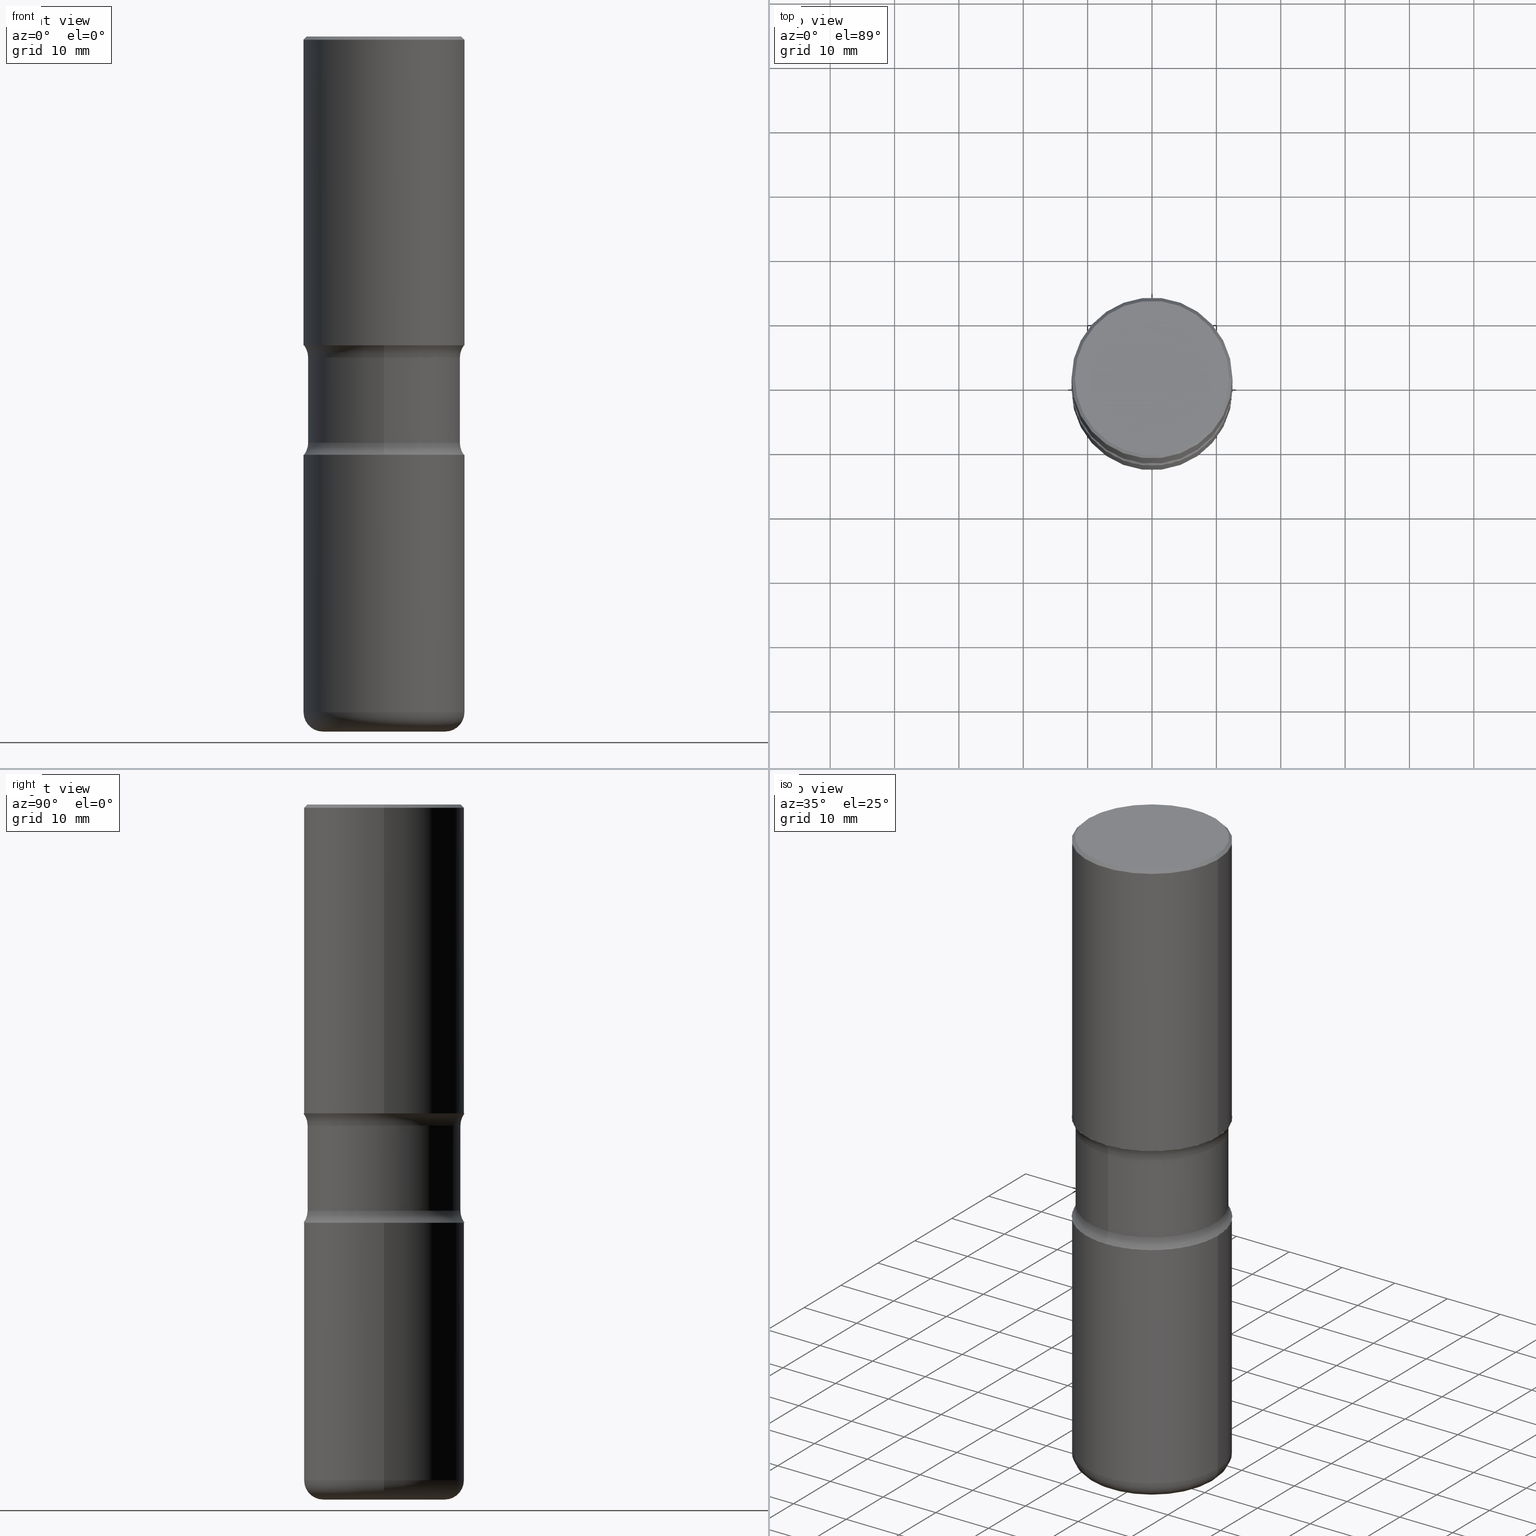
[diagram: canonical four-view strip — front | top / right | iso, engineering-drawing reading convention]
A machine part, canonical four-view strip (front | top / right | iso — engineering-drawing reading convention). The complete STEP part file that produces these views, byte-faithful:
ISO-10303-21;
HEADER;
FILE_DESCRIPTION (( 'STEP AP203' ),
    '1' );
FILE_NAME ('45015.STEP',
    '2024-03-02T04:41:59',
    ( '' ),
    ( '' ),
    'SwSTEP 2.0',
    'SolidWorks 2023',
    '' );
FILE_SCHEMA (( 'CONFIG_CONTROL_DESIGN' ));
ENDSEC;

DATA;
#1 = DIRECTION ( 'NONE',  ( -6.982962677686268288E-15, -1.000000000000000000, 0.000000000000000000 ) ) ;
#2 = DIRECTION ( 'NONE',  ( 6.982962677686265922E-15, 1.000000000000000000, -3.506115072082476004E-15 ) ) ;
#3 = DIRECTION ( 'NONE',  ( 1.000000000000000000, -6.982962677686266711E-15, 4.876176775795935793E-29 ) ) ;
#4 = VECTOR ( 'NONE', #324, 39.37007874015748143 ) ;
#5 = CIRCLE ( 'NONE', #361, 0.4921500000000003650 ) ;
#6 = DIRECTION ( 'NONE',  ( -2.445468806185136597E-29, 3.491481338843145583E-15, 1.000000000000000000 ) ) ;
#7 = CC_DESIGN_PERSON_AND_ORGANIZATION_ASSIGNMENT ( #190, #358, ( #322 ) ) ;
#8 = EDGE_CURVE ( 'NONE', #383, #194, #474, .T. ) ;
#9 = CARTESIAN_POINT ( 'NONE',  ( 0.4921500000000003094, -1.237171497605679270E-14, -2.559099999999999930 ) ) ;
#10 = CARTESIAN_POINT ( 'NONE',  ( 3.264535051818434527E-15, 0.4674999999999853162, -4.252000000000002444 ) ) ;
#11 = AXIS2_PLACEMENT_3D ( 'NONE', #227, #399, #355 ) ;
#12 = CARTESIAN_POINT ( 'NONE',  ( -0.4921500000000000874, 3.366835455046433267E-15, -0.02000000000000010103 ) ) ;
#13 = CIRCLE ( 'NONE', #133, 0.4921500000000003094 ) ;
#14 = DIRECTION ( 'NONE',  ( 6.982962677686265922E-15, 1.000000000000000000, -3.506115072082476004E-15 ) ) ;
#15 = DIRECTION ( 'NONE',  ( 7.105427357601001859E-15, 1.000000000000000000, -3.491481338843145583E-15 ) ) ;
#16 = CARTESIAN_POINT ( 'NONE',  ( 0.4921500000000003650, -3.436665081823298538E-15, 2.399810400207971564E-29 ) ) ;
#17 = APPROVAL_ROLE ( '' ) ;
#18 = PLANE ( 'NONE',  #489 ) ;
#19 = EDGE_LOOP ( 'NONE', ( #408, #551, #131, #412 ) ) ;
#20 = AXIS2_PLACEMENT_3D ( 'NONE', #22, #287, #156 ) ;
#21 = VECTOR ( 'NONE', #393, 39.37007874015748143 ) ;
#22 = CARTESIAN_POINT ( 'NONE',  ( 4.890937612370298557E-31, -6.982962677686327354E-17, -0.02000000000000010103 ) ) ;
#23 = EDGE_CURVE ( 'NONE', #244, #383, #253, .T. ) ;
#24 = ORIENTED_EDGE ( 'NONE', *, *, #340, .F. ) ;
#25 = DIRECTION ( 'NONE',  ( -2.445468806185136597E-29, 3.491481338843145583E-15, 1.000000000000000000 ) ) ;
#26 = ORIENTED_EDGE ( 'NONE', *, *, #507, .T. ) ;
#27 = DIRECTION ( 'NONE',  ( 2.445231236012367255E-29, -3.491821552852205613E-15, -1.000000000000000000 ) ) ;
#28 = ORIENTED_EDGE ( 'NONE', *, *, #299, .T. ) ;
#29 = CIRCLE ( 'NONE', #356, 0.4921500000000003094 ) ;
#30 = VECTOR ( 'NONE', #175, 39.37007874015748143 ) ;
#31 = PLANE ( 'NONE',  #122 ) ;
#32 = ORIENTED_EDGE ( 'NONE', *, *, #342, .F. ) ;
#33 = ADVANCED_FACE ( 'NONE', ( #343 ), #391, .T. ) ;
#34 = DIRECTION ( 'NONE',  ( 1.000000000000000000, -6.982962677686266711E-15, 4.876176775795935793E-29 ) ) ;
#35 = VERTEX_POINT ( 'NONE', #178 ) ;
#36 = COORDINATED_UNIVERSAL_TIME_OFFSET ( 5, 0, .BEHIND. ) ;
#37 = DIRECTION ( 'NONE',  ( 6.860497997771532351E-15, 1.000000000000000000, 0.000000000000000000 ) ) ;
#38 = ORIENTED_EDGE ( 'NONE', *, *, #527, .F. ) ;
#39 = DIRECTION ( 'NONE',  ( 2.445231236012367255E-29, -3.491821552852205219E-15, -1.000000000000000000 ) ) ;
#40 = ORIENTED_EDGE ( 'NONE', *, *, #82, .T. ) ;
#41 = EDGE_CURVE ( 'NONE', #351, #194, #345, .T. ) ;
#42 = DIRECTION ( 'NONE',  ( 2.438088387897960049E-29, -3.491481338843145188E-15, -1.000000000000000000 ) ) ;
#43 = CARTESIAN_POINT ( 'NONE',  ( 4.890937612370298557E-31, -6.982962677686327354E-17, -0.02000000000000010103 ) ) ;
#44 = DIRECTION ( 'NONE',  ( 2.445231236012367255E-29, -3.491821552852205613E-15, -1.000000000000000000 ) ) ;
#45 = EDGE_LOOP ( 'NONE', ( #66, #40 ) ) ;
#46 = CC_DESIGN_PERSON_AND_ORGANIZATION_ASSIGNMENT ( #79, #506, ( #396 ) ) ;
#47 = AXIS2_PLACEMENT_3D ( 'NONE', #257, #86, #1 ) ;
#48 = CONICAL_SURFACE ( 'NONE', #20, 0.4921500000000000874, 0.7853981633974471688 ) ;
#49 = PRODUCT_DEFINITION_FORMATION_WITH_SPECIFIED_SOURCE ( 'ANY', '', #352, .NOT_KNOWN. ) ;
#50 = CYLINDRICAL_SURFACE ( 'NONE', #55, 0.4675000000000001377 ) ;
#51 = FACE_OUTER_BOUND ( 'NONE', #215, .T. ) ;
#52 = ADVANCED_FACE ( 'NONE', ( #89 ), #456, .T. ) ;
#53 = FACE_OUTER_BOUND ( 'NONE', #19, .T. ) ;
#54 = APPLICATION_PROTOCOL_DEFINITION ( 'international standard', 'config_control_design', 1994, #264 ) ;
#55 = AXIS2_PLACEMENT_3D ( 'NONE', #486, #228, #14 ) ;
#56 = FACE_OUTER_BOUND ( 'NONE', #151, .T. ) ;
#57 = CIRCLE ( 'NONE', #221, 0.4921500000000003094 ) ;
#58 = PLANE ( 'NONE',  #377 ) ;
#59 = DIRECTION ( 'NONE',  ( -2.445468806185136597E-29, 3.491481338843145583E-15, 1.000000000000000000 ) ) ;
#60 = DIRECTION ( 'NONE',  ( 1.000000000000000000, 0.000000000000000000, 0.000000000000000000 ) ) ;
#61 = ADVANCED_BREP_SHAPE_REPRESENTATION ( '45015', ( #112, #119, #125, #490 ), #419 ) ;
#62 = DIRECTION ( 'NONE',  ( -6.982962677686265133E-15, -1.000000000000000000, 0.000000000000000000 ) ) ;
#63 = ADVANCED_FACE ( 'NONE', ( #51 ), #85, .F. ) ;
#64 = ADVANCED_FACE ( 'NONE', ( #187 ), #50, .T. ) ;
#65 = CARTESIAN_POINT ( 'NONE',  ( -3.376394089603198309E-15, -0.4921500000000092467, -2.559099999999998598 ) ) ;
#66 = ORIENTED_EDGE ( 'NONE', *, *, #195, .T. ) ;
#67 = TOROIDAL_SURFACE ( 'NONE', #430, 0.3740500000000004377, 0.1180999999999999966 ) ;
#68 = PERSON_AND_ORGANIZATION ( #90, #260 ) ;
#69 = FACE_OUTER_BOUND ( 'NONE', #462, .T. ) ;
#70 = DIRECTION ( 'NONE',  ( 2.445231236012367255E-29, -3.491821552852205613E-15, -1.000000000000000000 ) ) ;
#71 = VERTEX_POINT ( 'NONE', #273 ) ;
#72 = CARTESIAN_POINT ( 'NONE',  ( 4.621605955645307016E-29, -6.597973728909513714E-15, -1.889800000000000368 ) ) ;
#73 = ORIENTED_EDGE ( 'NONE', *, *, #183, .F. ) ;
#74 = CALENDAR_DATE ( 2024, 1, 3 ) ;
#75 = AXIS2_PLACEMENT_3D ( 'NONE', #378, #280, #501 ) ;
#76 = LOCAL_TIME ( 23, 41, 59.00000000000000000, #491 ) ;
#77 = DIRECTION ( 'NONE',  ( -2.445468806185136597E-29, 3.491481338843145583E-15, 1.000000000000000000 ) ) ;
#78 = ORIENTED_EDGE ( 'NONE', *, *, #392, .T. ) ;
#79 = PERSON_AND_ORGANIZATION ( #90, #260 ) ;
#80 = DIRECTION ( 'NONE',  ( -2.445468806185136597E-29, 3.491481338843145583E-15, 1.000000000000000000 ) ) ;
#81 = ORIENTED_EDGE ( 'NONE', *, *, #8, .T. ) ;
#82 = EDGE_CURVE ( 'NONE', #432, #137, #29, .T. ) ;
#83 = CARTESIAN_POINT ( 'NONE',  ( -0.4921500000000002539, 3.496936074043334869E-15, -2.420853904668952910E-29 ) ) ;
#84 = ORIENTED_EDGE ( 'NONE', *, *, #449, .F. ) ;
#85 = TOROIDAL_SURFACE ( 'NONE', #555, 0.5925000000000000266, 0.1250000000000000555 ) ;
#86 = DIRECTION ( 'NONE',  ( -1.000000000000000000, 6.982962677686265922E-15, -4.883557194083112340E-29 ) ) ;
#87 = ORIENTED_EDGE ( 'NONE', *, *, #369, .F. ) ;
#88 = DIRECTION ( 'NONE',  ( 1.000000000000000000, -6.982962677686267499E-15, 0.000000000000000000 ) ) ;
#89 = FACE_OUTER_BOUND ( 'NONE', #307, .T. ) ;
#90 = PERSON ( 'UNSPECIFIED', 'UNSPECIFIED', 'UNSPECIFIED', ('UNSPECIFIED'), ('UNSPECIFIED'), ('UNSPECIFIED') ) ;
#91 = ADVANCED_FACE ( 'NONE', ( #272 ), #67, .T. ) ;
#92 = CARTESIAN_POINT ( 'NONE',  ( -0.3740500000000004377, -1.177564960353302285E-14, -4.133899999999999686 ) ) ;
#93 = DIRECTION ( 'NONE',  ( -2.445468806185136597E-29, 3.491481338843145583E-15, 1.000000000000000000 ) ) ;
#94 = AXIS2_PLACEMENT_3D ( 'NONE', #274, #397, #182 ) ;
#95 = ADVANCED_FACE ( 'NONE', ( #444 ), #443, .F. ) ;
#96 = VECTOR ( 'NONE', #556, 39.37007874015748143 ) ;
#97 = CARTESIAN_POINT ( 'NONE',  ( 0.4921500000000003094, -1.003486651596907730E-14, -1.889800000000000368 ) ) ;
#98 = CARTESIAN_POINT ( 'NONE',  ( 3.264535051818377729E-15, 0.4674999999999931433, -1.964331050576255677 ) ) ;
#99 = CARTESIAN_POINT ( 'NONE',  ( 6.258199221908382824E-29, -8.935049894233495342E-15, -2.559099999999999930 ) ) ;
#100 = CIRCLE ( 'NONE', #431, 0.4921500000000003094 ) ;
#101 = DIRECTION ( 'NONE',  ( 1.000000000000000000, -6.982962677686266711E-15, 4.876006802227158492E-29 ) ) ;
#102 = CIRCLE ( 'NONE', #123, 0.4675000000000000266 ) ;
#103 = FACE_OUTER_BOUND ( 'NONE', #45, .T. ) ;
#104 = CARTESIAN_POINT ( 'NONE',  ( 4.803851608567179445E-29, -6.858222857668393721E-15, -1.964331050576254123 ) ) ;
#105 = CC_DESIGN_DATE_AND_TIME_ASSIGNMENT ( #143, #349, ( #322 ) ) ;
#106 = CARTESIAN_POINT ( 'NONE',  ( 0.4921500000000002539, -3.436665081823297749E-15, 2.399810400207971004E-29 ) ) ;
#107 = VERTEX_POINT ( 'NONE', #526 ) ;
#108 = CARTESIAN_POINT ( 'NONE',  ( 3.436665081823343897E-15, 0.4921499999999937036, -1.889800000000002367 ) ) ;
#109 = CARTESIAN_POINT ( 'NONE',  ( 1.039813336389919950E-28, -1.484577865276105326E-14, -4.251999999999999780 ) ) ;
#110 = ORIENTED_EDGE ( 'NONE', *, *, #195, .F. ) ;
#111 = AXIS2_PLACEMENT_3D ( 'NONE', #142, #482, #138 ) ;
#112 = MANIFOLD_SOLID_BREP ( 'Body-Move/Copy2[1]', #335 ) ;
#113 = DIRECTION ( 'NONE',  ( 2.445231236012367255E-29, -3.491821552852205613E-15, -1.000000000000000000 ) ) ;
#114 = EDGE_LOOP ( 'NONE', ( #121, #548 ) ) ;
#115 = ORIENTED_EDGE ( 'NONE', *, *, #41, .T. ) ;
#116 = APPROVAL_DATE_TIME ( #373, #148 ) ;
#117 = ADVANCED_FACE ( 'NONE', ( #56 ), #201, .F. ) ;
#118 = FACE_OUTER_BOUND ( 'NONE', #472, .T. ) ;
#119 = MANIFOLD_SOLID_BREP ( 'Body-Move/Copy2[2]', #445 ) ;
#120 = CIRCLE ( 'NONE', #268, 0.4921500000000003650 ) ;
#121 = ORIENTED_EDGE ( 'NONE', *, *, #255, .F. ) ;
#122 = AXIS2_PLACEMENT_3D ( 'NONE', #204, #374, #550 ) ;
#123 = AXIS2_PLACEMENT_3D ( 'NONE', #104, #207, #130 ) ;
#124 = FACE_OUTER_BOUND ( 'NONE', #265, .T. ) ;
#125 = MANIFOLD_SOLID_BREP ( 'Body-Move/Copy2[4]', #139 ) ;
#126 = ORIENTED_EDGE ( 'NONE', *, *, #8, .F. ) ;
#127 = CC_DESIGN_PERSON_AND_ORGANIZATION_ASSIGNMENT ( #362, #196, ( #352 ) ) ;
#128 = DIRECTION ( 'NONE',  ( 2.445231236012367255E-29, -3.491821552852205613E-15, -1.000000000000000000 ) ) ;
#129 = EDGE_LOOP ( 'NONE', ( #514, #212, #327, #24 ) ) ;
#130 = DIRECTION ( 'NONE',  ( 6.982962677686265922E-15, 1.000000000000000000, -3.506115072082476793E-15 ) ) ;
#131 = ORIENTED_EDGE ( 'NONE', *, *, #425, .T. ) ;
#132 = CIRCLE ( 'NONE', #179, 0.3740500000000004377 ) ;
#133 = AXIS2_PLACEMENT_3D ( 'NONE', #406, #315, #493 ) ;
#134 = CARTESIAN_POINT ( 'NONE',  ( 1.010932349788873450E-28, -1.443343470664368071E-14, -4.133899999999999686 ) ) ;
#135 = CARTESIAN_POINT ( 'NONE',  ( -0.4921500000000000874, 3.366835455046433267E-15, -0.02000000000000010103 ) ) ;
#136 = APPROVAL_STATUS ( 'not_yet_approved' ) ;
#137 = VERTEX_POINT ( 'NONE', #9 ) ;
#138 = DIRECTION ( 'NONE',  ( 6.982962677686266711E-15, 1.000000000000000000, -3.491821552852205613E-15 ) ) ;
#139 = CLOSED_SHELL ( 'NONE', ( #33, #117, #63, #243, #427, #367, #153, #64 ) ) ;
#140 = DIRECTION ( 'NONE',  ( 2.445231236012367255E-29, -3.491821552852205613E-15, -1.000000000000000000 ) ) ;
#141 = DIRECTION ( 'NONE',  ( 0.000000000000000000, 0.000000000000000000, 1.000000000000000000 ) ) ;
#142 = CARTESIAN_POINT ( 'NONE',  ( 6.075935862631948710E-29, -8.674826121982131059E-15, -2.484568949423746620 ) ) ;
#143 = DATE_AND_TIME ( #532, #250 ) ;
#144 = AXIS2_PLACEMENT_3D ( 'NONE', #508, #292, #338 ) ;
#145 = CC_DESIGN_PERSON_AND_ORGANIZATION_ASSIGNMENT ( #68, #241, ( #49 ) ) ;
#146 = CIRCLE ( 'NONE', #463, 0.4921500000000000874 ) ;
#147 = DIRECTION ( 'NONE',  ( 1.000000000000000000, -6.982962677686267499E-15, 0.000000000000000000 ) ) ;
#148 = APPROVAL ( #209, 'UNSPECIFIED' ) ;
#149 = LOCAL_TIME ( 23, 41, 59.00000000000000000, #331 ) ;
#150 = DIRECTION ( 'NONE',  ( 1.000000000000000000, -6.982962677686265133E-15, 0.000000000000000000 ) ) ;
#151 = EDGE_LOOP ( 'NONE', ( #87, #470, #158, #538 ) ) ;
#152 = COORDINATED_UNIVERSAL_TIME_OFFSET ( 5, 0, .BEHIND. ) ;
#153 = ADVANCED_FACE ( 'NONE', ( #53 ), #309, .F. ) ;
#154 = CARTESIAN_POINT ( 'NONE',  ( 3.297005828269570364E-15, 0.4721500000000000696, -1.644234401644690869E-15 ) ) ;
#155 = VERTEX_POINT ( 'NONE', #314 ) ;
#156 = DIRECTION ( 'NONE',  ( -1.000000000000000000, 6.982962677686265922E-15, 0.000000000000000000 ) ) ;
#157 = CIRCLE ( 'NONE', #418, 0.1249999999999999029 ) ;
#158 = ORIENTED_EDGE ( 'NONE', *, *, #269, .T. ) ;
#159 = AXIS2_PLACEMENT_3D ( 'NONE', #390, #382, #426 ) ;
#160 = SHAPE_DEFINITION_REPRESENTATION ( #210, #61 ) ;
#161 = DIMENSIONAL_EXPONENTS ( 1.000000000000000000, 0.000000000000000000, 0.000000000000000000, 0.000000000000000000, 0.000000000000000000, 0.000000000000000000, 0.000000000000000000 ) ;
#162 = DIRECTION ( 'NONE',  ( -2.445468806185136597E-29, 3.491481338843145583E-15, 1.000000000000000000 ) ) ;
#163 = EDGE_CURVE ( 'NONE', #166, #199, #487, .T. ) ;
#164 = ORIENTED_EDGE ( 'NONE', *, *, #23, .F. ) ;
#165 = DIRECTION ( 'NONE',  ( 6.982962677686265922E-15, 1.000000000000000000, -3.330506545156063891E-15 ) ) ;
#166 = VERTEX_POINT ( 'NONE', #98 ) ;
#167 = EDGE_CURVE ( 'NONE', #351, #244, #222, .T. ) ;
#168 = CARTESIAN_POINT ( 'NONE',  ( 0.3740500000000004377, -1.745775584234960551E-14, -4.251999999999999780 ) ) ;
#169 = EDGE_CURVE ( 'NONE', #35, #170, #410, .T. ) ;
#170 = VERTEX_POINT ( 'NONE', #97 ) ;
#171 = VECTOR ( 'NONE', #267, 39.37007874015748143 ) ;
#172 = AXIS2_PLACEMENT_3D ( 'NONE', #516, #128, #297 ) ;
#173 = CARTESIAN_POINT ( 'NONE',  ( 4.621446949928671989E-29, -6.598201434145778368E-15, -1.889800000000000368 ) ) ;
#174 = VERTEX_POINT ( 'NONE', #448 ) ;
#175 = DIRECTION ( 'NONE',  ( 2.445231236012367255E-29, -3.491821552852205219E-15, -1.000000000000000000 ) ) ;
#176 = DIRECTION ( 'NONE',  ( 1.000000000000000000, -6.982962677686265922E-15, 0.000000000000000000 ) ) ;
#177 = PLANE ( 'NONE',  #522 ) ;
#178 = CARTESIAN_POINT ( 'NONE',  ( -0.4921500000000003650, 1.629205435820154164E-16, -1.889800000000000368 ) ) ;
#179 = AXIS2_PLACEMENT_3D ( 'NONE', #247, #192, #150 ) ;
#180 = ORIENTED_EDGE ( 'NONE', *, *, #167, .F. ) ;
#181 = CARTESIAN_POINT ( 'NONE',  ( 4.890937612370298557E-31, -6.982962677686327354E-17, -0.02000000000000010103 ) ) ;
#182 = DIRECTION ( 'NONE',  ( 1.000000000000000000, -6.982962677686265922E-15, 4.876176775795935793E-29 ) ) ;
#183 = EDGE_CURVE ( 'NONE', #244, #351, #184, .T. ) ;
#184 = CIRCLE ( 'NONE', #385, 0.4721500000000000696 ) ;
#185 = DIRECTION ( 'NONE',  ( 6.982962677686266711E-15, 1.000000000000000000, -3.491821552852205613E-15 ) ) ;
#186 = APPLICATION_PROTOCOL_DEFINITION ( 'international standard', 'config_control_design', 1994, #558 ) ;
#187 = FACE_OUTER_BOUND ( 'NONE', #298, .T. ) ;
#188 = DIRECTION ( 'NONE',  ( -1.000000000000000000, 7.105427357601006592E-15, 0.000000000000000000 ) ) ;
#189 = DIRECTION ( 'NONE',  ( -2.445468806185136597E-29, 3.491481338843145583E-15, 1.000000000000000000 ) ) ;
#190 = PERSON_AND_ORGANIZATION ( #90, #260 ) ;
#191 = AXIS2_PLACEMENT_3D ( 'NONE', #413, #198, #420 ) ;
#192 = DIRECTION ( 'NONE',  ( -2.445468806185136597E-29, 3.491481338843145583E-15, 1.000000000000000000 ) ) ;
#193 = CIRCLE ( 'NONE', #47, 0.1249999999999999029 ) ;
#194 = VERTEX_POINT ( 'NONE', #12 ) ;
#195 = EDGE_CURVE ( 'NONE', #137, #432, #100, .T. ) ;
#196 = PERSON_AND_ORGANIZATION_ROLE ( 'design_owner' ) ;
#197 = DIRECTION ( 'NONE',  ( 6.982962677686266711E-15, 1.000000000000000000, -3.491821552852205613E-15 ) ) ;
#198 = DIRECTION ( 'NONE',  ( -2.445468806185136597E-29, 3.491481338843145583E-15, 1.000000000000000000 ) ) ;
#199 = VERTEX_POINT ( 'NONE', #233 ) ;
#200 = DATE_TIME_ROLE ( 'classification_date' ) ;
#201 = TOROIDAL_SURFACE ( 'NONE', #346, 0.5925000000000001377, 0.1249999999999999306 ) ;
#202 = ORIENTED_EDGE ( 'NONE', *, *, #169, .T. ) ;
#203 = CALENDAR_DATE ( 2024, 1, 3 ) ;
#204 = CARTESIAN_POINT ( 'NONE',  ( 6.258199221908382824E-29, -8.935049894233495342E-15, -2.559099999999999930 ) ) ;
#205 = ORIENTED_EDGE ( 'NONE', *, *, #528, .F. ) ;
#206 = EDGE_CURVE ( 'NONE', #107, #137, #404, .T. ) ;
#207 = DIRECTION ( 'NONE',  ( 2.445231236012367255E-29, -3.491821552852205613E-15, -1.000000000000000000 ) ) ;
#208 = DIRECTION ( 'NONE',  ( 2.445231236012367255E-29, -3.491821552852205613E-15, -1.000000000000000000 ) ) ;
#209 = APPROVAL_STATUS ( 'not_yet_approved' ) ;
#210 = PRODUCT_DEFINITION_SHAPE ( 'NONE', 'NONE',  #322 ) ;
#211 = CARTESIAN_POINT ( 'NONE',  ( 4.621446949928671989E-29, -6.598201434145778368E-15, -1.889800000000000368 ) ) ;
#212 = ORIENTED_EDGE ( 'NONE', *, *, #549, .T. ) ;
#213 = TOROIDAL_SURFACE ( 'NONE', #230, 0.5925000000000000266, 0.1250000000000000555 ) ;
#214 = CARTESIAN_POINT ( 'NONE',  ( -0.4921500000000003094, -8.187306226395251184E-15, -2.559099999999999930 ) ) ;
#215 = EDGE_LOOP ( 'NONE', ( #333, #26, #417, #434 ) ) ;
#216 = LINE ( 'NONE', #83, #21 ) ;
#217 = CARTESIAN_POINT ( 'NONE',  ( 0.4921500000000000874, -3.446223716380123532E-15, -0.02000000000000010103 ) ) ;
#218 = DIRECTION ( 'NONE',  ( -2.445468806185136597E-29, 3.491481338843145583E-15, 1.000000000000000000 ) ) ;
#219 = EDGE_CURVE ( 'NONE', #321, #505, #157, .T. ) ;
#220 = ORIENTED_EDGE ( 'NONE', *, *, #167, .T. ) ;
#221 = AXIS2_PLACEMENT_3D ( 'NONE', #544, #113, #165 ) ;
#222 = CIRCLE ( 'NONE', #11, 0.4721500000000000696 ) ;
#223 = LOCAL_TIME ( 23, 41, 59.00000000000000000, #36 ) ;
#224 = DIRECTION ( 'NONE',  ( -2.445468806185136597E-29, 3.491481338843145583E-15, 1.000000000000000000 ) ) ;
#225 = APPROVAL ( #136, 'UNSPECIFIED' ) ;
#226 = ADVANCED_FACE ( 'NONE', ( #504 ), #48, .T. ) ;
#227 = CARTESIAN_POINT ( 'NONE',  ( -2.087702828670439639E-46, 2.980686340760894400E-32, 8.537024980200822558E-18 ) ) ;
#228 = DIRECTION ( 'NONE',  ( 2.445231236012367255E-29, -3.491821552852205613E-15, -1.000000000000000000 ) ) ;
#229 = MECHANICAL_CONTEXT ( 'NONE', #264, 'mechanical' ) ;
#230 = AXIS2_PLACEMENT_3D ( 'NONE', #494, #70, #197 ) ;
#231 = AXIS2_PLACEMENT_3D ( 'NONE', #211, #80, #88 ) ;
#232 = CARTESIAN_POINT ( 'NONE',  ( 6.258199221908382824E-29, -8.935049894233495342E-15, -2.559099999999999930 ) ) ;
#233 = CARTESIAN_POINT ( 'NONE',  ( 3.264535051818391139E-15, 0.4674999999999915334, -2.484568949423748396 ) ) ;
#234 = UNCERTAINTY_MEASURE_WITH_UNIT (LENGTH_MEASURE( 1.000000000000000082E-05 ), #524, 'distance_accuracy_value', 'NONE');
#235 = DIRECTION ( 'NONE',  ( 2.445231236012367255E-29, -3.491821552852205613E-15, -1.000000000000000000 ) ) ;
#236 = CALENDAR_DATE ( 2024, 1, 3 ) ;
#237 = DIRECTION ( 'NONE',  ( -2.445468806185136597E-29, 3.491481338843145583E-15, 1.000000000000000000 ) ) ;
#238 = CC_DESIGN_APPROVAL ( #485, ( #49 ) ) ;
#239 = ORIENTED_EDGE ( 'NONE', *, *, #507, .F. ) ;
#240 = DESIGN_CONTEXT ( 'detailed design', #558, 'design' ) ;
#241 = PERSON_AND_ORGANIZATION_ROLE ( 'creator' ) ;
#242 = CARTESIAN_POINT ( 'NONE',  ( 0.4721500000000000696, -3.342703923013975763E-15, 8.537024980224040028E-18 ) ) ;
#243 = ADVANCED_FACE ( 'NONE', ( #459 ), #213, .F. ) ;
#244 = VERTEX_POINT ( 'NONE', #242 ) ;
#245 = CARTESIAN_POINT ( 'NONE',  ( -3.376394089603214875E-15, -0.4921500000000069153, -1.889799999999998592 ) ) ;
#246 = ORIENTED_EDGE ( 'NONE', *, *, #449, .T. ) ;
#247 = CARTESIAN_POINT ( 'NONE',  ( 1.039813336389919950E-28, -1.484577865276105326E-14, -4.251999999999999780 ) ) ;
#248 = CIRCLE ( 'NONE', #75, 0.1180999999999999689 ) ;
#249 = ORIENTED_EDGE ( 'NONE', *, *, #169, .F. ) ;
#250 = LOCAL_TIME ( 23, 41, 59.00000000000000000, #323 ) ;
#251 = CC_DESIGN_DATE_AND_TIME_ASSIGNMENT ( #328, #200, ( #396 ) ) ;
#252 = DIRECTION ( 'NONE',  ( 6.982962677686265922E-15, 1.000000000000000000, -3.491821552852205219E-15 ) ) ;
#253 = LINE ( 'NONE', #217, #276 ) ;
#254 = DIRECTION ( 'NONE',  ( -1.000000000000000000, 6.982962677686265922E-15, -4.876176775795935793E-29 ) ) ;
#255 = EDGE_CURVE ( 'NONE', #476, #155, #530, .T. ) ;
#256 = ORIENTED_EDGE ( 'NONE', *, *, #350, .T. ) ;
#257 = CARTESIAN_POINT ( 'NONE',  ( 4.137405386529174084E-15, 0.5924999999999914779, -2.484568949423748840 ) ) ;
#258 = ORIENTED_EDGE ( 'NONE', *, *, #468, .F. ) ;
#259 = AXIS2_PLACEMENT_3D ( 'NONE', #43, #6, #176 ) ;
#260 = ORGANIZATION ( 'UNSPECIFIED', 'UNSPECIFIED', '' ) ;
#261 = CARTESIAN_POINT ( 'NONE',  ( 0.000000000000000000, 0.000000000000000000, 0.000000000000000000 ) ) ;
#262 = VERTEX_POINT ( 'NONE', #245 ) ;
#263 = FACE_OUTER_BOUND ( 'NONE', #381, .T. ) ;
#264 = APPLICATION_CONTEXT ( 'configuration controlled 3d designs of mechanical parts and assemblies' ) ;
#265 = EDGE_LOOP ( 'NONE', ( #78, #387, #110, #466 ) ) ;
#266 = LENGTH_MEASURE_WITH_UNIT ( LENGTH_MEASURE( 0.02539999999999999897 ), #279 );
#267 = DIRECTION ( 'NONE',  ( -2.445468806185136877E-29, 3.491481338843145188E-15, 1.000000000000000000 ) ) ;
#268 = AXIS2_PLACEMENT_3D ( 'NONE', #134, #344, #388 ) ;
#269 = EDGE_CURVE ( 'NONE', #505, #199, #483, .T. ) ;
#270 = ADVANCED_FACE ( 'NONE', ( #452 ), #284, .T. ) ;
#271 = CC_DESIGN_SECURITY_CLASSIFICATION ( #396, ( #49 ) ) ;
#272 = FACE_OUTER_BOUND ( 'NONE', #129, .T. ) ;
#273 = CARTESIAN_POINT ( 'NONE',  ( -3.291838451780678509E-15, -0.4675000000000068545, -1.964331050576252347 ) ) ;
#274 = CARTESIAN_POINT ( 'NONE',  ( 4.621446949928671989E-29, -6.598201434145778368E-15, -1.889800000000000368 ) ) ;
#275 =( NAMED_UNIT ( * ) PLANE_ANGLE_UNIT ( ) SI_UNIT ( $, .RADIAN. ) );
#276 = VECTOR ( 'NONE', #423, 39.37007874015748143 ) ;
#277 = CIRCLE ( 'NONE', #231, 0.4921500000000003094 ) ;
#278 = CARTESIAN_POINT ( 'NONE',  ( 6.258199221908382824E-29, -8.935049894233495342E-15, -2.559099999999999930 ) ) ;
#279 =( LENGTH_UNIT ( ) NAMED_UNIT ( * ) SI_UNIT ( $, .METRE. ) );
#280 = DIRECTION ( 'NONE',  ( -6.982962677686266711E-15, -1.000000000000000000, 3.491481338843145583E-15 ) ) ;
#281 = CARTESIAN_POINT ( 'NONE',  ( 4.137405386529160673E-15, 0.5924999999999932543, -1.964331050576256121 ) ) ;
#282 = ORIENTED_EDGE ( 'NONE', *, *, #82, .F. ) ;
#283 = DATE_AND_TIME ( #496, #484 ) ;
#284 = TOROIDAL_SURFACE ( 'NONE', #293, 0.3740500000000004377, 0.1180999999999999966 ) ;
#285 = DIRECTION ( 'NONE',  ( 1.000000000000000000, -6.982962677686265922E-15, 0.000000000000000000 ) ) ;
#286 = ORIENTED_EDGE ( 'NONE', *, *, #549, .F. ) ;
#287 = DIRECTION ( 'NONE',  ( 2.445468806185136597E-29, -3.491481338843145583E-15, -1.000000000000000000 ) ) ;
#288 = DIRECTION ( 'NONE',  ( 2.438088387897960049E-29, -3.491481338843145188E-15, -1.000000000000000000 ) ) ;
#289 = EDGE_CURVE ( 'NONE', #553, #262, #376, .T. ) ;
#290 = ORIENTED_EDGE ( 'NONE', *, *, #269, .F. ) ;
#291 = AXIS2_PLACEMENT_3D ( 'NONE', #92, #15, #188 ) ;
#292 = DIRECTION ( 'NONE',  ( 2.445231236012367255E-29, -3.491821552852205613E-15, -1.000000000000000000 ) ) ;
#293 = AXIS2_PLACEMENT_3D ( 'NONE', #326, #237, #540 ) ;
#294 = ORIENTED_EDGE ( 'NONE', *, *, #500, .F. ) ;
#295 = CARTESIAN_POINT ( 'NONE',  ( -3.207282813958087712E-15, -0.4675000000000149591, -4.251999999999998892 ) ) ;
#296 = EDGE_LOOP ( 'NONE', ( #220, #460 ) ) ;
#297 = DIRECTION ( 'NONE',  ( 6.982962677686265922E-15, 1.000000000000000000, -3.330506545156063891E-15 ) ) ;
#298 = EDGE_LOOP ( 'NONE', ( #258, #379, #372, #290 ) ) ;
#299 = EDGE_CURVE ( 'NONE', #155, #476, #132, .T. ) ;
#300 = FACE_OUTER_BOUND ( 'NONE', #330, .T. ) ;
#301 = ORIENTED_EDGE ( 'NONE', *, *, #350, .F. ) ;
#302 = AXIS2_PLACEMENT_3D ( 'NONE', #109, #25, #371 ) ;
#303 = AXIS2_PLACEMENT_3D ( 'NONE', #433, #341, #3 ) ;
#304 = CYLINDRICAL_SURFACE ( 'NONE', #437, 0.4921500000000002539 ) ;
#305 = EDGE_LOOP ( 'NONE', ( #336, #436 ) ) ;
#306 = ADVANCED_FACE ( 'NONE', ( #407 ), #18, .F. ) ;
#307 = EDGE_LOOP ( 'NONE', ( #73, #545, #81, #375 ) ) ;
#308 = CARTESIAN_POINT ( 'NONE',  ( -4.064845063679572150E-15, -0.5925000000000087974, -2.484568949423744399 ) ) ;
#309 = TOROIDAL_SURFACE ( 'NONE', #111, 0.5925000000000001377, 0.1249999999999999306 ) ;
#310 = AXIS2_PLACEMENT_3D ( 'NONE', #473, #42, #254 ) ;
#311 = DIRECTION ( 'NONE',  ( 6.982962677686266711E-15, 1.000000000000000000, -3.491821552852205613E-15 ) ) ;
#312 = DIRECTION ( 'NONE',  ( -1.000000000000000000, 6.982962677686265922E-15, 0.000000000000000000 ) ) ;
#313 = PERSON_AND_ORGANIZATION ( #90, #260 ) ;
#314 = CARTESIAN_POINT ( 'NONE',  ( -0.3740500000000004377, -1.156224609112537121E-14, -4.251999999999999780 ) ) ;
#315 = DIRECTION ( 'NONE',  ( 2.445231236012367255E-29, -3.491821552852205613E-15, -1.000000000000000000 ) ) ;
#316 = CIRCLE ( 'NONE', #395, 0.1250000000000000278 ) ;
#317 = APPROVAL_PERSON_ORGANIZATION ( #313, #485, #539 ) ;
#318 = CARTESIAN_POINT ( 'NONE',  ( -2.087702828670439639E-46, 2.980686340760894400E-32, 8.537024980200822558E-18 ) ) ;
#319 = APPROVAL_STATUS ( 'not_yet_approved' ) ;
#320 = DIRECTION ( 'NONE',  ( -1.000000000000000000, 6.982962677686265922E-15, -4.876176775795935793E-29 ) ) ;
#321 = VERTEX_POINT ( 'NONE', #65 ) ;
#322 = PRODUCT_DEFINITION ( 'UNKNOWN', '', #49, #240 ) ;
#323 = COORDINATED_UNIVERSAL_TIME_OFFSET ( 5, 0, .BEHIND. ) ;
#324 = DIRECTION ( 'NONE',  ( -2.445468806185136877E-29, 3.491481338843145188E-15, 1.000000000000000000 ) ) ;
#325 = ORIENTED_EDGE ( 'NONE', *, *, #163, .F. ) ;
#326 = CARTESIAN_POINT ( 'NONE',  ( 1.010932349788873450E-28, -1.443343470664368071E-14, -4.133899999999999686 ) ) ;
#327 = ORIENTED_EDGE ( 'NONE', *, *, #392, .F. ) ;
#328 = DATE_AND_TIME ( #74, #149 ) ;
#329 = CYLINDRICAL_SURFACE ( 'NONE', #191, 0.4921500000000003650 ) ;
#330 = EDGE_LOOP ( 'NONE', ( #502, #205 ) ) ;
#331 = COORDINATED_UNIVERSAL_TIME_OFFSET ( 5, 0, .BEHIND. ) ;
#332 = CARTESIAN_POINT ( 'NONE',  ( 3.436665081823360858E-15, 0.4921499999999913721, -2.559100000000001707 ) ) ;
#333 = ORIENTED_EDGE ( 'NONE', *, *, #400, .F. ) ;
#334 = PLANE ( 'NONE',  #310 ) ;
#335 = CLOSED_SHELL ( 'NONE', ( #405, #91, #488, #270, #354, #542 ) ) ;
#336 = ORIENTED_EDGE ( 'NONE', *, *, #554, .T. ) ;
#337 = CIRCLE ( 'NONE', #365, 0.1250000000000000278 ) ;
#338 = DIRECTION ( 'NONE',  ( 6.982962677686265133E-15, 1.000000000000000000, -3.506115072082475215E-15 ) ) ;
#339 = ORIENTED_EDGE ( 'NONE', *, *, #340, .T. ) ;
#340 = EDGE_CURVE ( 'NONE', #476, #107, #248, .T. ) ;
#341 = DIRECTION ( 'NONE',  ( -2.445468806185136597E-29, 3.491481338843145583E-15, 1.000000000000000000 ) ) ;
#342 = EDGE_CURVE ( 'NONE', #170, #383, #547, .T. ) ;
#343 = FACE_OUTER_BOUND ( 'NONE', #541, .T. ) ;
#344 = DIRECTION ( 'NONE',  ( -2.445468806185136597E-29, 3.491481338843145583E-15, 1.000000000000000000 ) ) ;
#345 = LINE ( 'NONE', #135, #499 ) ;
#346 = AXIS2_PLACEMENT_3D ( 'NONE', #357, #398, #185 ) ;
#347 = AXIS2_PLACEMENT_3D ( 'NONE', #435, #44, #422 ) ;
#348 = EDGE_CURVE ( 'NONE', #166, #553, #316, .T. ) ;
#349 = DATE_TIME_ROLE ( 'creation_date' ) ;
#350 = EDGE_CURVE ( 'NONE', #194, #383, #146, .T. ) ;
#351 = VERTEX_POINT ( 'NONE', #457 ) ;
#352 = PRODUCT ( '45015', '45015', '', ( #229 ) ) ;
#353 = DIRECTION ( 'NONE',  ( 1.000000000000000000, -6.982962677686265922E-15, 0.000000000000000000 ) ) ;
#354 = ADVANCED_FACE ( 'NONE', ( #69 ), #329, .T. ) ;
#355 = DIRECTION ( 'NONE',  ( 1.000000000000000000, -6.982962677686266711E-15, 4.876006802227158492E-29 ) ) ;
#356 = AXIS2_PLACEMENT_3D ( 'NONE', #99, #189, #359 ) ;
#357 = CARTESIAN_POINT ( 'NONE',  ( 6.075935862631948710E-29, -8.674826121982131059E-15, -2.484568949423746620 ) ) ;
#358 = PERSON_AND_ORGANIZATION_ROLE ( 'creator' ) ;
#359 = DIRECTION ( 'NONE',  ( 1.000000000000000000, -6.982962677686265922E-15, 0.000000000000000000 ) ) ;
#360 = DIRECTION ( 'NONE',  ( 2.445231236012367255E-29, -3.491821552852205219E-15, -1.000000000000000000 ) ) ;
#361 = AXIS2_PLACEMENT_3D ( 'NONE', #429, #77, #471 ) ;
#362 = PERSON_AND_ORGANIZATION ( #90, #260 ) ;
#363 = AXIS2_PLACEMENT_3D ( 'NONE', #72, #27, #366 ) ;
#364 = PRODUCT_RELATED_PRODUCT_CATEGORY ( 'detail', '', ( #352 ) ) ;
#365 = AXIS2_PLACEMENT_3D ( 'NONE', #465, #513, #37 ) ;
#366 = DIRECTION ( 'NONE',  ( 6.982962677686265922E-15, 1.000000000000000000, -3.330506545156063891E-15 ) ) ;
#367 = ADVANCED_FACE ( 'NONE', ( #380 ), #31, .F. ) ;
#368 = EDGE_LOOP ( 'NONE', ( #286, #28, #339, #84 ) ) ;
#369 = EDGE_CURVE ( 'NONE', #321, #428, #57, .T. ) ;
#370 = PERSON_AND_ORGANIZATION ( #90, #260 ) ;
#371 = DIRECTION ( 'NONE',  ( 1.000000000000000000, -6.982962677686265133E-15, 0.000000000000000000 ) ) ;
#372 = ORIENTED_EDGE ( 'NONE', *, *, #163, .T. ) ;
#373 = DATE_AND_TIME ( #203, #223 ) ;
#374 = DIRECTION ( 'NONE',  ( -2.445231236012367255E-29, 3.491821552852205219E-15, 1.000000000000000000 ) ) ;
#375 = ORIENTED_EDGE ( 'NONE', *, *, #41, .F. ) ;
#376 = CIRCLE ( 'NONE', #363, 0.4921500000000003094 ) ;
#377 = AXIS2_PLACEMENT_3D ( 'NONE', #232, #403, #480 ) ;
#378 = CARTESIAN_POINT ( 'NONE',  ( 0.3740500000000004377, -1.704541189623222980E-14, -4.133899999999999686 ) ) ;
#379 = ORIENTED_EDGE ( 'NONE', *, *, #400, .T. ) ;
#380 = FACE_OUTER_BOUND ( 'NONE', #305, .T. ) ;
#381 = EDGE_LOOP ( 'NONE', ( #509, #202, #421, #301 ) ) ;
#382 = DIRECTION ( 'NONE',  ( -2.445468806185136597E-29, 3.491481338843145583E-15, 1.000000000000000000 ) ) ;
#383 = VERTEX_POINT ( 'NONE', #492 ) ;
#384 = LINE ( 'NONE', #520, #96 ) ;
#385 = AXIS2_PLACEMENT_3D ( 'NONE', #318, #224, #101 ) ;
#386 = EDGE_CURVE ( 'NONE', #166, #71, #102, .T. ) ;
#387 = ORIENTED_EDGE ( 'NONE', *, *, #527, .T. ) ;
#388 = DIRECTION ( 'NONE',  ( 1.000000000000000000, -6.982962677686265133E-15, 0.000000000000000000 ) ) ;
#389 = EDGE_LOOP ( 'NONE', ( #164, #180, #115, #256 ) ) ;
#390 = CARTESIAN_POINT ( 'NONE',  ( 0.000000000000000000, 0.000000000000000000, 0.000000000000000000 ) ) ;
#391 = CYLINDRICAL_SURFACE ( 'NONE', #521, 0.4675000000000001377 ) ;
#392 = EDGE_CURVE ( 'NONE', #107, #174, #5, .T. ) ;
#393 = DIRECTION ( 'NONE',  ( -2.445468806185136877E-29, 3.491481338843145188E-15, 1.000000000000000000 ) ) ;
#394 = ORIENTED_EDGE ( 'NONE', *, *, #424, .T. ) ;
#395 = AXIS2_PLACEMENT_3D ( 'NONE', #281, #497, #62 ) ;
#396 = SECURITY_CLASSIFICATION ( '', '', #503 ) ;
#397 = DIRECTION ( 'NONE',  ( -2.438088387897960049E-29, 3.491481338843145188E-15, 1.000000000000000000 ) ) ;
#398 = DIRECTION ( 'NONE',  ( 2.445231236012367255E-29, -3.491821552852205613E-15, -1.000000000000000000 ) ) ;
#399 = DIRECTION ( 'NONE',  ( -2.445468806185136597E-29, 3.491481338843145583E-15, 1.000000000000000000 ) ) ;
#400 = EDGE_CURVE ( 'NONE', #71, #166, #440, .T. ) ;
#401 = AXIS2_PLACEMENT_3D ( 'NONE', #441, #93, #147 ) ;
#402 = APPROVAL_PERSON_ORGANIZATION ( #370, #225, #17 ) ;
#403 = DIRECTION ( 'NONE',  ( 2.438088387897960049E-29, -3.491481338843145188E-15, -1.000000000000000000 ) ) ;
#404 = LINE ( 'NONE', #16, #171 ) ;
#405 = ADVANCED_FACE ( 'NONE', ( #124 ), #477, .T. ) ;
#406 = CARTESIAN_POINT ( 'NONE',  ( 6.258199221908382824E-29, -8.935049894233495342E-15, -2.559099999999999930 ) ) ;
#407 = FACE_OUTER_BOUND ( 'NONE', #296, .T. ) ;
#408 = ORIENTED_EDGE ( 'NONE', *, *, #219, .F. ) ;
#409 = APPROVAL_DATE_TIME ( #536, #225 ) ;
#410 = CIRCLE ( 'NONE', #401, 0.4921500000000003094 ) ;
#411 = DIRECTION ( 'NONE',  ( 1.000000000000000000, -6.860497997771530774E-15, 4.840794713204170268E-29 ) ) ;
#412 = ORIENTED_EDGE ( 'NONE', *, *, #500, .T. ) ;
#413 = CARTESIAN_POINT ( 'NONE',  ( 0.000000000000000000, 0.000000000000000000, 0.000000000000000000 ) ) ;
#414 = EDGE_LOOP ( 'NONE', ( #239, #458, #525, #481 ) ) ;
#415 = PERSON_AND_ORGANIZATION ( #90, #260 ) ;
#416 = DIRECTION ( 'NONE',  ( 6.982962677686265133E-15, 1.000000000000000000, -3.506115072082475215E-15 ) ) ;
#417 = ORIENTED_EDGE ( 'NONE', *, *, #528, .T. ) ;
#418 = AXIS2_PLACEMENT_3D ( 'NONE', #308, #411, #537 ) ;
#419 =( GEOMETRIC_REPRESENTATION_CONTEXT ( 3 ) GLOBAL_UNCERTAINTY_ASSIGNED_CONTEXT ( ( #234 ) ) GLOBAL_UNIT_ASSIGNED_CONTEXT ( ( #524, #275, #447 ) ) REPRESENTATION_CONTEXT ( 'NONE', 'WORKASPACE' ) );
#420 = DIRECTION ( 'NONE',  ( 1.000000000000000000, -6.982962677686266711E-15, 4.876176775795935793E-29 ) ) ;
#421 = ORIENTED_EDGE ( 'NONE', *, *, #342, .T. ) ;
#422 = DIRECTION ( 'NONE',  ( 6.982962677686265922E-15, 1.000000000000000000, -3.506115072082476793E-15 ) ) ;
#423 = DIRECTION ( 'NONE',  ( 0.7071067811865466846, -7.319954787623252890E-15, -0.7071067811865483499 ) ) ;
#424 = EDGE_CURVE ( 'NONE', #35, #194, #216, .T. ) ;
#425 = EDGE_CURVE ( 'NONE', #428, #199, #193, .T. ) ;
#426 = DIRECTION ( 'NONE',  ( 1.000000000000000000, -6.982962677686266711E-15, 4.876176775795935793E-29 ) ) ;
#427 = ADVANCED_FACE ( 'NONE', ( #300 ), #177, .F. ) ;
#428 = VERTEX_POINT ( 'NONE', #332 ) ;
#429 = CARTESIAN_POINT ( 'NONE',  ( 1.010932349788873450E-28, -1.443343470664368071E-14, -4.133899999999999686 ) ) ;
#430 = AXIS2_PLACEMENT_3D ( 'NONE', #534, #531, #533 ) ;
#431 = AXIS2_PLACEMENT_3D ( 'NONE', #278, #59, #353 ) ;
#432 = VERTEX_POINT ( 'NONE', #214 ) ;
#433 = CARTESIAN_POINT ( 'NONE',  ( 0.000000000000000000, 0.000000000000000000, 0.000000000000000000 ) ) ;
#434 = ORIENTED_EDGE ( 'NONE', *, *, #348, .F. ) ;
#435 = CARTESIAN_POINT ( 'NONE',  ( 4.803851608567179445E-29, -6.858222857668393721E-15, -1.964331050576254123 ) ) ;
#436 = ORIENTED_EDGE ( 'NONE', *, *, #369, .T. ) ;
#437 = AXIS2_PLACEMENT_3D ( 'NONE', #261, #218, #34 ) ;
#438 = DIRECTION ( 'NONE',  ( 2.445468806185136597E-29, -3.491481338843145583E-15, -1.000000000000000000 ) ) ;
#439 = VECTOR ( 'NONE', #360, 39.37007874015748143 ) ;
#440 = CIRCLE ( 'NONE', #347, 0.4675000000000000266 ) ;
#441 = CARTESIAN_POINT ( 'NONE',  ( 4.621446949928671989E-29, -6.598201434145778368E-15, -1.889800000000000368 ) ) ;
#442 = EDGE_CURVE ( 'NONE', #170, #35, #277, .T. ) ;
#443 = PLANE ( 'NONE',  #94 ) ;
#444 = FACE_OUTER_BOUND ( 'NONE', #517, .T. ) ;
#445 = CLOSED_SHELL ( 'NONE', ( #479, #52, #226, #306, #95, #450 ) ) ;
#446 = CC_DESIGN_APPROVAL ( #225, ( #322 ) ) ;
#447 =( NAMED_UNIT ( * ) SI_UNIT ( $, .STERADIAN. ) SOLID_ANGLE_UNIT ( ) );
#448 = CARTESIAN_POINT ( 'NONE',  ( -0.4921500000000003650, -1.093649863260034387E-14, -4.133899999999999686 ) ) ;
#449 = EDGE_CURVE ( 'NONE', #174, #107, #120, .T. ) ;
#450 = ADVANCED_FACE ( 'NONE', ( #263 ), #304, .T. ) ;
#451 = CARTESIAN_POINT ( 'NONE',  ( 0.000000000000000000, 0.000000000000000000, 0.000000000000000000 ) ) ;
#452 = FACE_OUTER_BOUND ( 'NONE', #368, .T. ) ;
#453 = CARTESIAN_POINT ( 'NONE',  ( 4.890937612370298557E-31, -6.982962677686327354E-17, -0.02000000000000010103 ) ) ;
#454 = ORIENTED_EDGE ( 'NONE', *, *, #386, .T. ) ;
#455 = APPROVAL_DATE_TIME ( #283, #485 ) ;
#456 = CONICAL_SURFACE ( 'NONE', #511, 0.4921500000000000874, 0.7853981633974471688 ) ;
#457 = CARTESIAN_POINT ( 'NONE',  ( -0.4721500000000000696, 3.331920641658002013E-15, 8.537024980177643606E-18 ) ) ;
#458 = ORIENTED_EDGE ( 'NONE', *, *, #386, .F. ) ;
#459 = FACE_OUTER_BOUND ( 'NONE', #414, .T. ) ;
#460 = ORIENTED_EDGE ( 'NONE', *, *, #183, .T. ) ;
#461 = CARTESIAN_POINT ( 'NONE',  ( 6.075953568986510396E-29, -8.674800765474615334E-15, -2.484568949423746620 ) ) ;
#462 = EDGE_LOOP ( 'NONE', ( #38, #246, #523, #282 ) ) ;
#463 = AXIS2_PLACEMENT_3D ( 'NONE', #453, #162, #285 ) ;
#464 = APPROVAL_PERSON_ORGANIZATION ( #415, #148, #498 ) ;
#465 = CARTESIAN_POINT ( 'NONE',  ( -4.064845063679584772E-15, -0.5925000000000069100, -1.964331050576251902 ) ) ;
#466 = ORIENTED_EDGE ( 'NONE', *, *, #206, .F. ) ;
#467 = CC_DESIGN_PERSON_AND_ORGANIZATION_ASSIGNMENT ( #543, #515, ( #49 ) ) ;
#468 = EDGE_CURVE ( 'NONE', #71, #505, #559, .T. ) ;
#469 = CARTESIAN_POINT ( 'NONE',  ( -3.291838451780665098E-15, -0.4675000000000088529, -2.484568949423744844 ) ) ;
#470 = ORIENTED_EDGE ( 'NONE', *, *, #219, .T. ) ;
#471 = DIRECTION ( 'NONE',  ( 1.000000000000000000, -6.982962677686265133E-15, 0.000000000000000000 ) ) ;
#472 = EDGE_LOOP ( 'NONE', ( #560, #394, #126, #32 ) ) ;
#473 = CARTESIAN_POINT ( 'NONE',  ( 1.473513757477249102E-28, -8.634941775840625490E-15, -4.252000000000000668 ) ) ;
#474 = CIRCLE ( 'NONE', #259, 0.4921500000000000874 ) ;
#475 = CIRCLE ( 'NONE', #172, 0.4921500000000003094 ) ;
#476 = VERTEX_POINT ( 'NONE', #168 ) ;
#477 = CYLINDRICAL_SURFACE ( 'NONE', #159, 0.4921500000000003650 ) ;
#478 = DIRECTION ( 'NONE',  ( -0.7071067811865466846, 2.468850131082247989E-15, -0.7071067811865483499 ) ) ;
#479 = ADVANCED_FACE ( 'NONE', ( #118 ), #552, .T. ) ;
#480 = DIRECTION ( 'NONE',  ( -1.000000000000000000, 6.982962677686265922E-15, -4.876176775795935793E-29 ) ) ;
#481 = ORIENTED_EDGE ( 'NONE', *, *, #289, .T. ) ;
#482 = DIRECTION ( 'NONE',  ( 2.445231236012367255E-29, -3.491821552852205613E-15, -1.000000000000000000 ) ) ;
#483 = CIRCLE ( 'NONE', #546, 0.4675000000000001932 ) ;
#484 = LOCAL_TIME ( 23, 41, 59.00000000000000000, #152 ) ;
#485 = APPROVAL ( #319, 'UNSPECIFIED' ) ;
#486 = CARTESIAN_POINT ( 'NONE',  ( 1.039773118135371932E-28, -1.484635460105699266E-14, -4.252000000000000668 ) ) ;
#487 = LINE ( 'NONE', #10, #439 ) ;
#488 = ADVANCED_FACE ( 'NONE', ( #518 ), #334, .T. ) ;
#489 = AXIS2_PLACEMENT_3D ( 'NONE', #154, #288, #320 ) ;
#490 = AXIS2_PLACEMENT_3D ( 'NONE', #451, #141, #60 ) ;
#491 = COORDINATED_UNIVERSAL_TIME_OFFSET ( 5, 0, .BEHIND. ) ;
#492 = CARTESIAN_POINT ( 'NONE',  ( 0.4921500000000000874, -3.446223716380123532E-15, -0.02000000000000010103 ) ) ;
#493 = DIRECTION ( 'NONE',  ( 6.982962677686265922E-15, 1.000000000000000000, -3.330506545156063891E-15 ) ) ;
#494 = CARTESIAN_POINT ( 'NONE',  ( 4.803710309205107225E-29, -6.858425206397141862E-15, -1.964331050576254123 ) ) ;
#495 = ORIENTED_EDGE ( 'NONE', *, *, #442, .F. ) ;
#496 = CALENDAR_DATE ( 2024, 1, 3 ) ;
#497 = DIRECTION ( 'NONE',  ( -1.000000000000000000, 6.982962677686265922E-15, -4.883557194083112340E-29 ) ) ;
#498 = APPROVAL_ROLE ( '' ) ;
#499 = VECTOR ( 'NONE', #478, 39.37007874015748143 ) ;
#500 = EDGE_CURVE ( 'NONE', #199, #505, #510, .T. ) ;
#501 = DIRECTION ( 'NONE',  ( 1.000000000000000000, -6.982962677686258033E-15, 0.000000000000000000 ) ) ;
#502 = ORIENTED_EDGE ( 'NONE', *, *, #289, .F. ) ;
#503 = SECURITY_CLASSIFICATION_LEVEL ( 'unclassified' ) ;
#504 = FACE_OUTER_BOUND ( 'NONE', #389, .T. ) ;
#505 = VERTEX_POINT ( 'NONE', #469 ) ;
#506 = PERSON_AND_ORGANIZATION_ROLE ( 'classification_officer' ) ;
#507 = EDGE_CURVE ( 'NONE', #71, #262, #337, .T. ) ;
#508 = CARTESIAN_POINT ( 'NONE',  ( 6.075953568986510396E-29, -8.674800765474615334E-15, -2.484568949423746620 ) ) ;
#509 = ORIENTED_EDGE ( 'NONE', *, *, #424, .F. ) ;
#510 = CIRCLE ( 'NONE', #144, 0.4675000000000001932 ) ;
#511 = AXIS2_PLACEMENT_3D ( 'NONE', #181, #438, #312 ) ;
#512 = CIRCLE ( 'NONE', #291, 0.1180999999999999689 ) ;
#513 = DIRECTION ( 'NONE',  ( 1.000000000000000000, -6.860497997771530774E-15, 4.840794713204170268E-29 ) ) ;
#514 = ORIENTED_EDGE ( 'NONE', *, *, #255, .T. ) ;
#515 = PERSON_AND_ORGANIZATION_ROLE ( 'design_supplier' ) ;
#516 = CARTESIAN_POINT ( 'NONE',  ( 4.621605955645307016E-29, -6.597973728909513714E-15, -1.889800000000000368 ) ) ;
#517 = EDGE_LOOP ( 'NONE', ( #495, #249 ) ) ;
#518 = FACE_OUTER_BOUND ( 'NONE', #114, .T. ) ;
#519 = CARTESIAN_POINT ( 'NONE',  ( 1.039773118135371932E-28, -1.484635460105699266E-14, -4.252000000000000668 ) ) ;
#520 = CARTESIAN_POINT ( 'NONE',  ( -0.4921500000000003650, 3.496936074043335658E-15, -2.420853904668953751E-29 ) ) ;
#521 = AXIS2_PLACEMENT_3D ( 'NONE', #519, #208, #2 ) ;
#522 = AXIS2_PLACEMENT_3D ( 'NONE', #173, #39, #252 ) ;
#523 = ORIENTED_EDGE ( 'NONE', *, *, #206, .T. ) ;
#524 =( CONVERSION_BASED_UNIT ( 'INCH', #266 ) LENGTH_UNIT ( ) NAMED_UNIT ( #161 ) );
#525 = ORIENTED_EDGE ( 'NONE', *, *, #348, .T. ) ;
#526 = CARTESIAN_POINT ( 'NONE',  ( 0.4921500000000003650, -1.787009978846697806E-14, -4.133899999999999686 ) ) ;
#527 = EDGE_CURVE ( 'NONE', #174, #432, #384, .T. ) ;
#528 = EDGE_CURVE ( 'NONE', #262, #553, #475, .T. ) ;
#529 = CARTESIAN_POINT ( 'NONE',  ( 4.803710309205107225E-29, -6.858425206397141862E-15, -1.964331050576254123 ) ) ;
#530 = CIRCLE ( 'NONE', #302, 0.3740500000000004377 ) ;
#531 = DIRECTION ( 'NONE',  ( -2.445468806185136597E-29, 3.491481338843145583E-15, 1.000000000000000000 ) ) ;
#532 = CALENDAR_DATE ( 2024, 1, 3 ) ;
#533 = DIRECTION ( 'NONE',  ( 1.000000000000000000, -6.982962677686264344E-15, 4.883557194083111780E-29 ) ) ;
#534 = CARTESIAN_POINT ( 'NONE',  ( 1.010932349788873450E-28, -1.443343470664368071E-14, -4.133899999999999686 ) ) ;
#535 = CC_DESIGN_APPROVAL ( #148, ( #396 ) ) ;
#536 = DATE_AND_TIME ( #236, #76 ) ;
#537 = DIRECTION ( 'NONE',  ( 6.860497997771531562E-15, 1.000000000000000000, 0.000000000000000000 ) ) ;
#538 = ORIENTED_EDGE ( 'NONE', *, *, #425, .F. ) ;
#539 = APPROVAL_ROLE ( '' ) ;
#540 = DIRECTION ( 'NONE',  ( 1.000000000000000000, -6.982962677686264344E-15, 4.883557194083111780E-29 ) ) ;
#541 = EDGE_LOOP ( 'NONE', ( #454, #557, #294, #325 ) ) ;
#542 = ADVANCED_FACE ( 'NONE', ( #103 ), #58, .F. ) ;
#543 = PERSON_AND_ORGANIZATION ( #90, #260 ) ;
#544 = CARTESIAN_POINT ( 'NONE',  ( 6.258199221908382824E-29, -8.935049894233495342E-15, -2.559099999999999930 ) ) ;
#545 = ORIENTED_EDGE ( 'NONE', *, *, #23, .T. ) ;
#546 = AXIS2_PLACEMENT_3D ( 'NONE', #461, #235, #416 ) ;
#547 = LINE ( 'NONE', #106, #4 ) ;
#548 = ORIENTED_EDGE ( 'NONE', *, *, #299, .F. ) ;
#549 = EDGE_CURVE ( 'NONE', #155, #174, #512, .T. ) ;
#550 = DIRECTION ( 'NONE',  ( -6.982962677686265922E-15, -1.000000000000000000, 3.491821552852205219E-15 ) ) ;
#551 = ORIENTED_EDGE ( 'NONE', *, *, #554, .F. ) ;
#552 = CYLINDRICAL_SURFACE ( 'NONE', #303, 0.4921500000000002539 ) ;
#553 = VERTEX_POINT ( 'NONE', #108 ) ;
#554 = EDGE_CURVE ( 'NONE', #428, #321, #13, .T. ) ;
#555 = AXIS2_PLACEMENT_3D ( 'NONE', #529, #140, #311 ) ;
#556 = DIRECTION ( 'NONE',  ( -2.445468806185136877E-29, 3.491481338843145188E-15, 1.000000000000000000 ) ) ;
#557 = ORIENTED_EDGE ( 'NONE', *, *, #468, .T. ) ;
#558 = APPLICATION_CONTEXT ( 'configuration controlled 3d designs of mechanical parts and assemblies' ) ;
#559 = LINE ( 'NONE', #295, #30 ) ;
#560 = ORIENTED_EDGE ( 'NONE', *, *, #442, .T. ) ;
ENDSEC;
END-ISO-10303-21;
